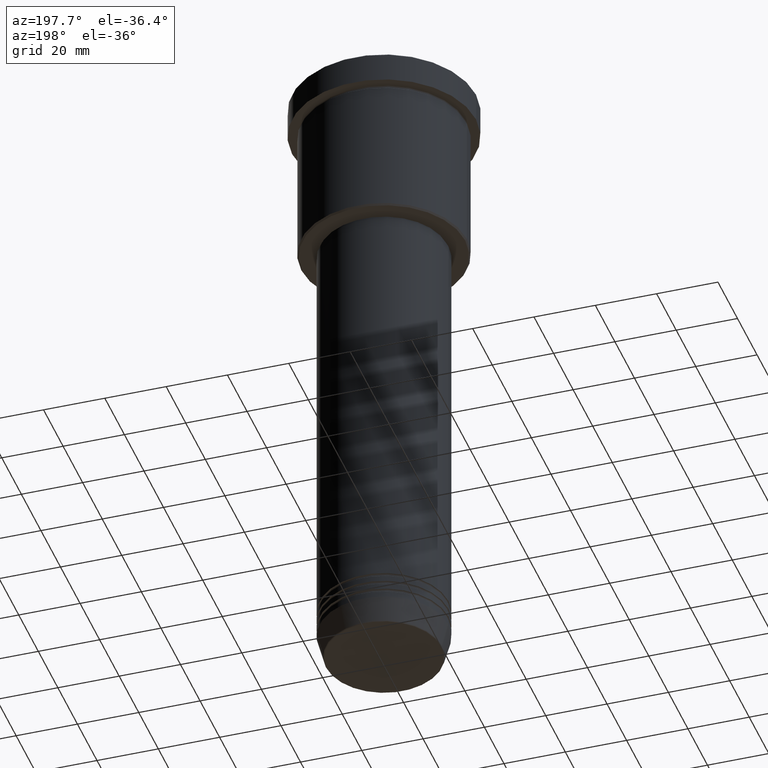
[diagram: clean part render]
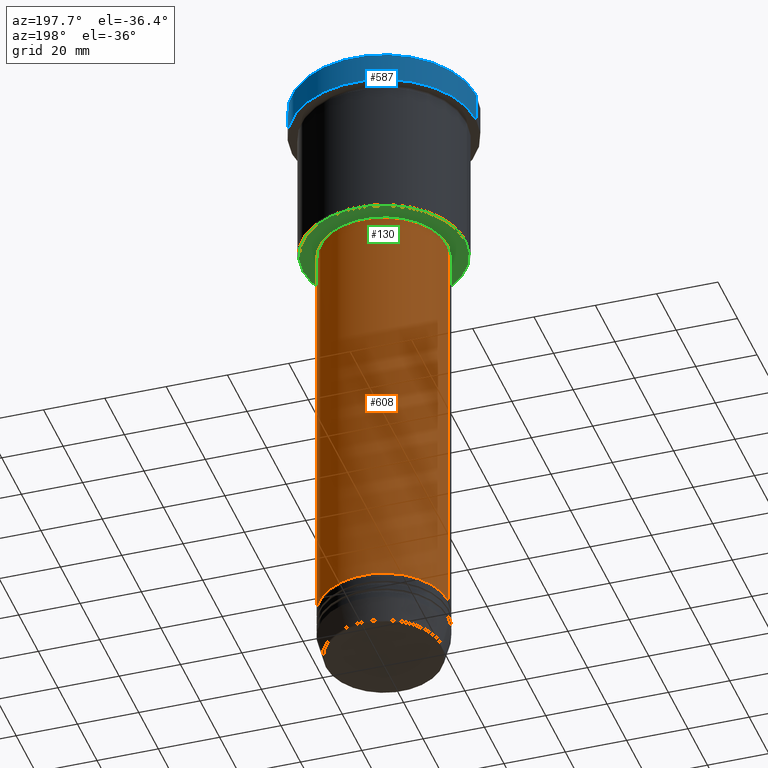
[diagram: same view with three faces highlighted in distinct colors, each labeled with its STEP entity id]
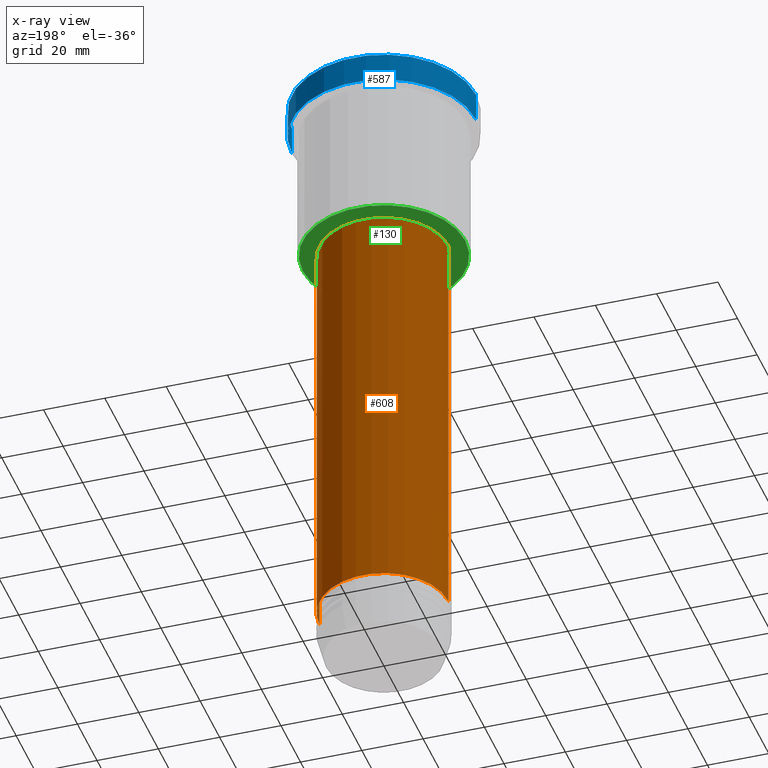
[diagram: x-ray of the same camera — body ghosted, the three highlighted faces saturated]
A machine part, auxiliary view with three faces highlighted in distinct colors.
The next image is the same camera in x-ray (body ghosted, the three faces saturated) — at least one of them is partly hidden behind the body in this view.
Their STEP definitions:

[orange] entity #608 — the highlighted cylindrical surface (partial cylindrical patch) has radius 21 mm, axis along (-0, -0, 1).
#16 = VECTOR ( 'NONE', #161, 1000.000000000000000 ) ;
#85 = VERTEX_POINT ( 'NONE', #394 ) ;
#114 = CIRCLE ( 'NONE', #206, 21.00000000000000000 ) ;
#142 = DIRECTION ( 'NONE',  ( -0.000000000000000000, -0.000000000000000000, 1.000000000000000000 ) ) ;
#146 = CARTESIAN_POINT ( 'NONE',  ( 0.000000000000000000, 0.000000000000000000, -193.9999999999999716 ) ) ;
#161 = DIRECTION ( 'NONE',  ( -0.000000000000000000, -0.000000000000000000, 1.000000000000000000 ) ) ;
#206 = AXIS2_PLACEMENT_3D ( 'NONE', #310, #142, #682 ) ;
#213 = CARTESIAN_POINT ( 'NONE',  ( -21.00000000000000000, 2.571758278209441661E-15, -193.9999999999999716 ) ) ;
#235 = EDGE_CURVE ( 'NONE', #503, #454, #1114, .T. ) ;
#239 = VERTEX_POINT ( 'NONE', #1151 ) ;
#274 = CARTESIAN_POINT ( 'NONE',  ( 21.00000000000000000, 0.000000000000000000, 0.000000000000000000 ) ) ;
#310 = CARTESIAN_POINT ( 'NONE',  ( 0.000000000000000000, 0.000000000000000000, -57.00000000000000000 ) ) ;
#323 = CARTESIAN_POINT ( 'NONE',  ( 0.000000000000000000, 0.000000000000000000, 0.000000000000000000 ) ) ;
#340 = CARTESIAN_POINT ( 'NONE',  ( -21.00000000000000000, 2.571758278209441661E-15, 0.000000000000000000 ) ) ;
#366 = DIRECTION ( 'NONE',  ( -0.000000000000000000, -0.000000000000000000, 1.000000000000000000 ) ) ;
#370 = ORIENTED_EDGE ( 'NONE', *, *, #381, .F. ) ;
#381 = EDGE_CURVE ( 'NONE', #503, #85, #1092, .T. ) ;
#394 = CARTESIAN_POINT ( 'NONE',  ( 21.00000000000000000, 0.000000000000000000, -57.00000000000000000 ) ) ;
#454 = VERTEX_POINT ( 'NONE', #213 ) ;
#503 = VERTEX_POINT ( 'NONE', #835 ) ;
#518 = DIRECTION ( 'NONE',  ( -0.000000000000000000, -0.000000000000000000, 1.000000000000000000 ) ) ;
#534 = LINE ( 'NONE', #340, #16 ) ;
#581 = AXIS2_PLACEMENT_3D ( 'NONE', #146, #518, #962 ) ;
#608 = ADVANCED_FACE ( 'NONE', ( #874 ), #810, .T. ) ;
#641 = EDGE_LOOP ( 'NONE', ( #644, #971, #944, #370 ) ) ;
#643 = DIRECTION ( 'NONE',  ( -0.000000000000000000, -0.000000000000000000, 1.000000000000000000 ) ) ;
#644 = ORIENTED_EDGE ( 'NONE', *, *, #235, .T. ) ;
#682 = DIRECTION ( 'NONE',  ( 1.000000000000000000, 0.000000000000000000, 0.000000000000000000 ) ) ;
#725 = DIRECTION ( 'NONE',  ( 1.000000000000000000, 0.000000000000000000, 0.000000000000000000 ) ) ;
#810 = CYLINDRICAL_SURFACE ( 'NONE', #1081, 21.00000000000000000 ) ;
#835 = CARTESIAN_POINT ( 'NONE',  ( 21.00000000000000000, 0.000000000000000000, -193.9999999999999716 ) ) ;
#874 = FACE_OUTER_BOUND ( 'NONE', #641, .T. ) ;
#944 = ORIENTED_EDGE ( 'NONE', *, *, #953, .F. ) ;
#953 = EDGE_CURVE ( 'NONE', #85, #239, #114, .T. ) ;
#962 = DIRECTION ( 'NONE',  ( 1.000000000000000000, 0.000000000000000000, 0.000000000000000000 ) ) ;
#971 = ORIENTED_EDGE ( 'NONE', *, *, #1021, .T. ) ;
#1008 = VECTOR ( 'NONE', #643, 1000.000000000000000 ) ;
#1021 = EDGE_CURVE ( 'NONE', #454, #239, #534, .T. ) ;
#1081 = AXIS2_PLACEMENT_3D ( 'NONE', #323, #366, #725 ) ;
#1092 = LINE ( 'NONE', #274, #1008 ) ;
#1114 = CIRCLE ( 'NONE', #581, 21.00000000000000000 ) ;
#1151 = CARTESIAN_POINT ( 'NONE',  ( -21.00000000000000000, 2.571758278209441661E-15, -57.00000000000000000 ) ) ;

[blue] entity #587 — the highlighted cylindrical surface (partial cylindrical patch) has radius 30 mm, axis along (-0, -0, 1).
#3 = DIRECTION ( 'NONE',  ( 0.000000000000000000, 0.000000000000000000, -1.000000000000000000 ) ) ;
#60 = LINE ( 'NONE', #328, #1064 ) ;
#126 = CARTESIAN_POINT ( 'NONE',  ( 30.00000000000000000, 0.000000000000000000, 0.000000000000000000 ) ) ;
#148 = DIRECTION ( 'NONE',  ( -0.000000000000000000, -0.000000000000000000, 1.000000000000000000 ) ) ;
#149 = CIRCLE ( 'NONE', #455, 30.00000000000000000 ) ;
#172 = VERTEX_POINT ( 'NONE', #250 ) ;
#182 = CARTESIAN_POINT ( 'NONE',  ( -30.00000000000000000, 3.673940397442059178E-15, -9.999999999999992895 ) ) ;
#250 = CARTESIAN_POINT ( 'NONE',  ( 30.00000000000000000, 0.000000000000000000, -0.4999999999999518718 ) ) ;
#284 = EDGE_CURVE ( 'NONE', #736, #172, #654, .T. ) ;
#296 = ORIENTED_EDGE ( 'NONE', *, *, #863, .F. ) ;
#320 = AXIS2_PLACEMENT_3D ( 'NONE', #897, #602, #607 ) ;
#328 = CARTESIAN_POINT ( 'NONE',  ( -30.00000000000000000, 3.673940397442059178E-15, 0.000000000000000000 ) ) ;
#355 = VERTEX_POINT ( 'NONE', #182 ) ;
#358 = CYLINDRICAL_SURFACE ( 'NONE', #320, 30.00000000000000000 ) ;
#411 = ORIENTED_EDGE ( 'NONE', *, *, #887, .T. ) ;
#426 = AXIS2_PLACEMENT_3D ( 'NONE', #472, #3, #464 ) ;
#427 = DIRECTION ( 'NONE',  ( -0.000000000000000000, -0.000000000000000000, 1.000000000000000000 ) ) ;
#455 = AXIS2_PLACEMENT_3D ( 'NONE', #598, #427, #689 ) ;
#464 = DIRECTION ( 'NONE',  ( 1.000000000000000000, 0.000000000000000000, 0.000000000000000000 ) ) ;
#472 = CARTESIAN_POINT ( 'NONE',  ( 0.000000000000000000, 0.000000000000000000, -0.4999999999999518718 ) ) ;
#496 = VECTOR ( 'NONE', #148, 1000.000000000000000 ) ;
#505 = ORIENTED_EDGE ( 'NONE', *, *, #617, .T. ) ;
#587 = ADVANCED_FACE ( 'NONE', ( #869 ), #358, .T. ) ;
#598 = CARTESIAN_POINT ( 'NONE',  ( 0.000000000000000000, 0.000000000000000000, -9.999999999999992895 ) ) ;
#602 = DIRECTION ( 'NONE',  ( -0.000000000000000000, -0.000000000000000000, 1.000000000000000000 ) ) ;
#607 = DIRECTION ( 'NONE',  ( 1.000000000000000000, 0.000000000000000000, 0.000000000000000000 ) ) ;
#617 = EDGE_CURVE ( 'NONE', #837, #355, #149, .T. ) ;
#654 = CIRCLE ( 'NONE', #426, 30.00000000000000000 ) ;
#689 = DIRECTION ( 'NONE',  ( 1.000000000000000000, 0.000000000000000000, 0.000000000000000000 ) ) ;
#736 = VERTEX_POINT ( 'NONE', #1007 ) ;
#821 = CARTESIAN_POINT ( 'NONE',  ( 30.00000000000000000, 0.000000000000000000, -9.999999999999992895 ) ) ;
#837 = VERTEX_POINT ( 'NONE', #821 ) ;
#860 = DIRECTION ( 'NONE',  ( -0.000000000000000000, -0.000000000000000000, 1.000000000000000000 ) ) ;
#863 = EDGE_CURVE ( 'NONE', #837, #172, #1040, .T. ) ;
#869 = FACE_OUTER_BOUND ( 'NONE', #880, .T. ) ;
#880 = EDGE_LOOP ( 'NONE', ( #505, #411, #1157, #296 ) ) ;
#887 = EDGE_CURVE ( 'NONE', #355, #736, #60, .T. ) ;
#897 = CARTESIAN_POINT ( 'NONE',  ( 0.000000000000000000, 0.000000000000000000, 0.000000000000000000 ) ) ;
#1007 = CARTESIAN_POINT ( 'NONE',  ( -30.00000000000000000, 3.673940397442059178E-15, -0.4999999999999518718 ) ) ;
#1040 = LINE ( 'NONE', #126, #496 ) ;
#1064 = VECTOR ( 'NONE', #860, 1000.000000000000000 ) ;
#1157 = ORIENTED_EDGE ( 'NONE', *, *, #284, .T. ) ;

[green] entity #130 — the highlighted planar face has unit normal (0, 0, -1).
#4 = VERTEX_POINT ( 'NONE', #1109 ) ;
#6 = ORIENTED_EDGE ( 'NONE', *, *, #195, .T. ) ;
#24 = CARTESIAN_POINT ( 'NONE',  ( 0.000000000000000000, 0.000000000000000000, -55.99999999999999289 ) ) ;
#31 = DIRECTION ( 'NONE',  ( -0.000000000000000000, -0.000000000000000000, 1.000000000000000000 ) ) ;
#46 = VERTEX_POINT ( 'NONE', #949 ) ;
#57 = FACE_BOUND ( 'NONE', #497, .T. ) ;
#109 = EDGE_CURVE ( 'NONE', #160, #46, #397, .T. ) ;
#130 = ADVANCED_FACE ( 'NONE', ( #337, #57 ), #255, .T. ) ;
#145 = AXIS2_PLACEMENT_3D ( 'NONE', #609, #691, #163 ) ;
#154 = DIRECTION ( 'NONE',  ( -1.000000000000000000, 0.000000000000000000, -0.000000000000000000 ) ) ;
#160 = VERTEX_POINT ( 'NONE', #542 ) ;
#163 = DIRECTION ( 'NONE',  ( 1.000000000000000000, 0.000000000000000000, 0.000000000000000000 ) ) ;
#183 = VERTEX_POINT ( 'NONE', #439 ) ;
#195 = EDGE_CURVE ( 'NONE', #183, #4, #432, .T. ) ;
#217 = AXIS2_PLACEMENT_3D ( 'NONE', #582, #618, #697 ) ;
#255 = PLANE ( 'NONE',  #879 ) ;
#308 = DIRECTION ( 'NONE',  ( 0.000000000000000000, 0.000000000000000000, -1.000000000000000000 ) ) ;
#337 = FACE_OUTER_BOUND ( 'NONE', #502, .T. ) ;
#397 = CIRCLE ( 'NONE', #217, 26.49999999999999645 ) ;
#418 = EDGE_CURVE ( 'NONE', #4, #183, #913, .T. ) ;
#432 = CIRCLE ( 'NONE', #145, 20.50000000000000000 ) ;
#439 = CARTESIAN_POINT ( 'NONE',  ( -20.50000000000000000, 2.510525938252074481E-15, -55.99999999999999289 ) ) ;
#440 = ORIENTED_EDGE ( 'NONE', *, *, #109, .T. ) ;
#442 = AXIS2_PLACEMENT_3D ( 'NONE', #24, #308, #1115 ) ;
#444 = EDGE_CURVE ( 'NONE', #46, #160, #545, .T. ) ;
#473 = ORIENTED_EDGE ( 'NONE', *, *, #444, .T. ) ;
#497 = EDGE_LOOP ( 'NONE', ( #832, #6 ) ) ;
#502 = EDGE_LOOP ( 'NONE', ( #473, #440 ) ) ;
#504 = CARTESIAN_POINT ( 'NONE',  ( 0.000000000000000000, 0.000000000000000000, -55.99999999999999289 ) ) ;
#542 = CARTESIAN_POINT ( 'NONE',  ( -26.49999999999999645, 3.275930187719169552E-15, -55.99999999999999289 ) ) ;
#545 = CIRCLE ( 'NONE', #442, 26.49999999999999645 ) ;
#582 = CARTESIAN_POINT ( 'NONE',  ( 0.000000000000000000, 0.000000000000000000, -55.99999999999999289 ) ) ;
#609 = CARTESIAN_POINT ( 'NONE',  ( 0.000000000000000000, 0.000000000000000000, -55.99999999999999289 ) ) ;
#618 = DIRECTION ( 'NONE',  ( 0.000000000000000000, 0.000000000000000000, -1.000000000000000000 ) ) ;
#691 = DIRECTION ( 'NONE',  ( -0.000000000000000000, -0.000000000000000000, 1.000000000000000000 ) ) ;
#697 = DIRECTION ( 'NONE',  ( -1.000000000000000000, 0.000000000000000000, 0.000000000000000000 ) ) ;
#788 = DIRECTION ( 'NONE',  ( 0.000000000000000000, 0.000000000000000000, -1.000000000000000000 ) ) ;
#791 = CARTESIAN_POINT ( 'NONE',  ( 0.000000000000000000, 27.00000000000000355, -55.99999999999999289 ) ) ;
#832 = ORIENTED_EDGE ( 'NONE', *, *, #418, .T. ) ;
#845 = DIRECTION ( 'NONE',  ( 1.000000000000000000, 0.000000000000000000, 0.000000000000000000 ) ) ;
#879 = AXIS2_PLACEMENT_3D ( 'NONE', #791, #788, #154 ) ;
#913 = CIRCLE ( 'NONE', #1107, 20.50000000000000000 ) ;
#949 = CARTESIAN_POINT ( 'NONE',  ( 26.49999999999999645, 0.000000000000000000, -55.99999999999999289 ) ) ;
#1107 = AXIS2_PLACEMENT_3D ( 'NONE', #504, #31, #845 ) ;
#1109 = CARTESIAN_POINT ( 'NONE',  ( 20.50000000000000000, 0.000000000000000000, -55.99999999999999289 ) ) ;
#1115 = DIRECTION ( 'NONE',  ( -1.000000000000000000, 0.000000000000000000, 0.000000000000000000 ) ) ;